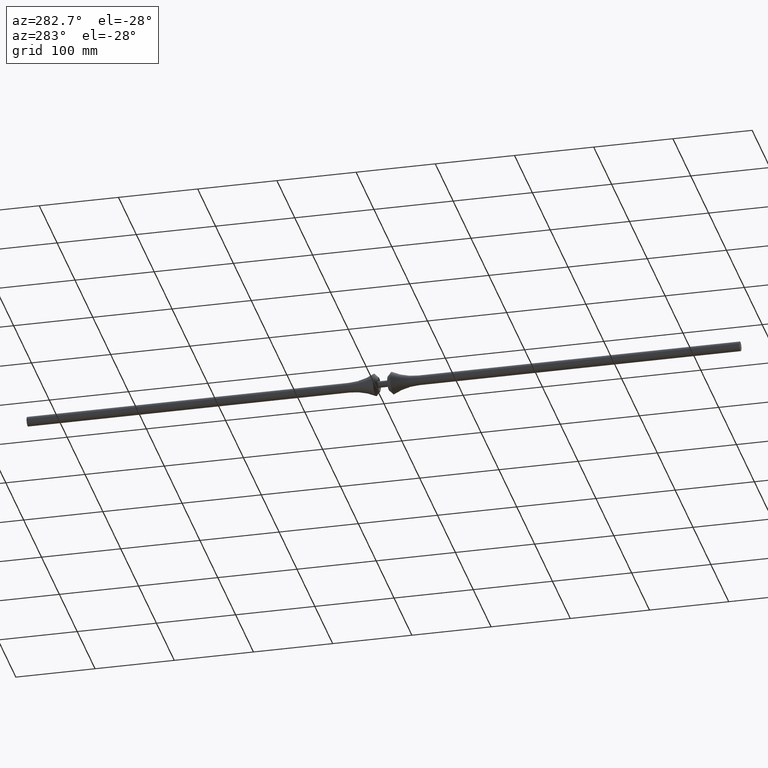
[diagram: clean part render]
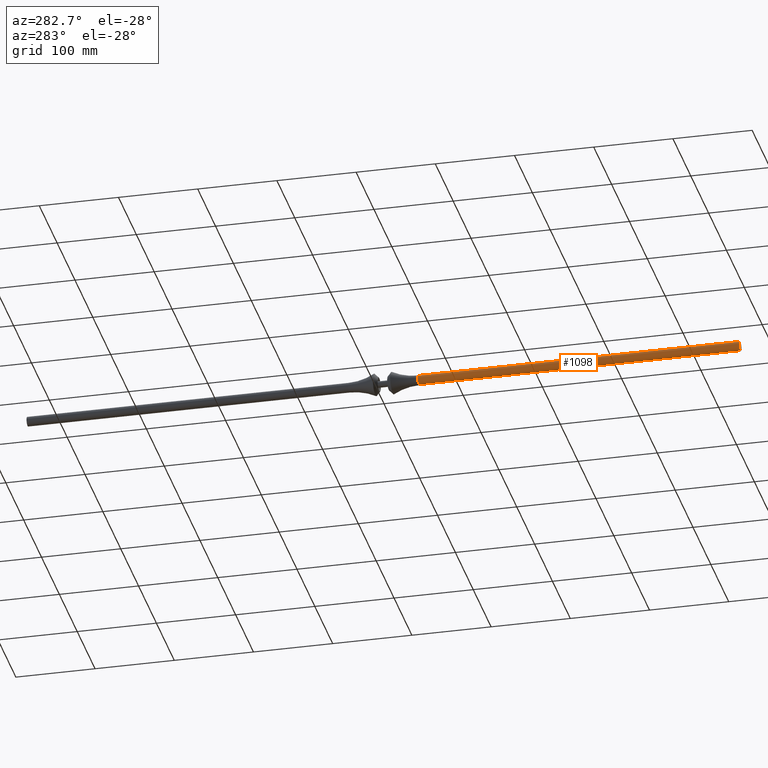
[diagram: same view with one face highlighted and labeled with its STEP entity id]
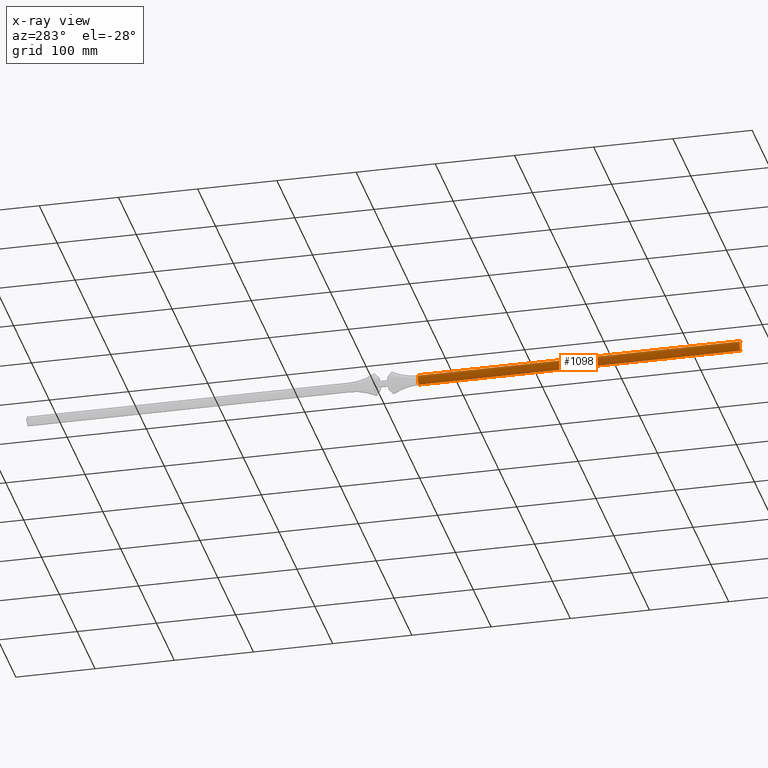
[diagram: x-ray of the same camera — body ghosted, the highlighted face saturated]
A machine part, auxiliary view. The second image highlights one B-rep face of the part: STEP entity #1098.
The next image is the same camera in x-ray: the body ghosted, the highlighted face saturated — about 0% of this face is hidden behind the body in this view.
In plain terms, the highlighted cylindrical surface (edge-blend (fillet) strip) has radius 6 mm, axis along (0, 1, 0).
Its self-contained STEP definition (entity closure, byte-faithful):
#32 = EDGE_LOOP ( 'NONE', ( #2570, #1085, #686, #151 ) ) ;
#102 = CIRCLE ( 'NONE', #1902, 6.000000000000000000 ) ;
#141 = CARTESIAN_POINT ( 'NONE',  ( 0.000000000000000000, 406.0000000000000000, -6.000000000000000000 ) ) ;
#151 = ORIENTED_EDGE ( 'NONE', *, *, #2547, .F. ) ;
#160 = DIRECTION ( 'NONE',  ( 0.000000000000000000, -1.000000000000000000, 0.000000000000000000 ) ) ;
#207 = CARTESIAN_POINT ( 'NONE',  ( 0.000000000000000000, 0.000000000000000000, -6.000000000000000000 ) ) ;
#255 = VERTEX_POINT ( 'NONE', #1901 ) ;
#287 = CARTESIAN_POINT ( 'NONE',  ( 0.000000000000000000, 0.000000000000000000, 0.000000000000000000 ) ) ;
#312 = VERTEX_POINT ( 'NONE', #207 ) ;
#349 = FACE_OUTER_BOUND ( 'NONE', #32, .T. ) ;
#404 = DIRECTION ( 'NONE',  ( 0.000000000000000000, -1.000000000000000000, 0.000000000000000000 ) ) ;
#603 = AXIS2_PLACEMENT_3D ( 'NONE', #1890, #404, #2574 ) ;
#686 = ORIENTED_EDGE ( 'NONE', *, *, #2473, .T. ) ;
#747 = LINE ( 'NONE', #2456, #940 ) ;
#846 = VECTOR ( 'NONE', #160, 1000.000000000000000 ) ;
#940 = VECTOR ( 'NONE', #1142, 1000.000000000000000 ) ;
#950 = DIRECTION ( 'NONE',  ( 0.000000000000000000, 0.000000000000000000, -1.000000000000000000 ) ) ;
#1085 = ORIENTED_EDGE ( 'NONE', *, *, #1995, .T. ) ;
#1098 = ADVANCED_FACE ( 'NONE', ( #349 ), #2000, .T. ) ;
#1142 = DIRECTION ( 'NONE',  ( 0.000000000000000000, -1.000000000000000000, 0.000000000000000000 ) ) ;
#1179 = LINE ( 'NONE', #1444, #846 ) ;
#1271 = AXIS2_PLACEMENT_3D ( 'NONE', #287, #2216, #1347 ) ;
#1347 = DIRECTION ( 'NONE',  ( 0.000000000000000000, 0.000000000000000000, -1.000000000000000000 ) ) ;
#1444 = CARTESIAN_POINT ( 'NONE',  ( 7.347880794884119736E-16, 0.000000000000000000, 6.000000000000000000 ) ) ;
#1664 = VERTEX_POINT ( 'NONE', #141 ) ;
#1799 = CARTESIAN_POINT ( 'NONE',  ( 0.000000000000000000, 0.000000000000000000, 0.000000000000000000 ) ) ;
#1890 = CARTESIAN_POINT ( 'NONE',  ( 0.000000000000000000, 406.0000000000000000, 0.000000000000000000 ) ) ;
#1901 = CARTESIAN_POINT ( 'NONE',  ( 7.347880794884119736E-16, 406.0000000000000000, 6.000000000000000000 ) ) ;
#1902 = AXIS2_PLACEMENT_3D ( 'NONE', #1799, #2678, #950 ) ;
#1905 = EDGE_CURVE ( 'NONE', #255, #2323, #1179, .T. ) ;
#1995 = EDGE_CURVE ( 'NONE', #255, #1664, #2516, .T. ) ;
#2000 = CYLINDRICAL_SURFACE ( 'NONE', #1271, 6.000000000000000000 ) ;
#2216 = DIRECTION ( 'NONE',  ( 0.000000000000000000, -1.000000000000000000, 0.000000000000000000 ) ) ;
#2323 = VERTEX_POINT ( 'NONE', #2697 ) ;
#2456 = CARTESIAN_POINT ( 'NONE',  ( 0.000000000000000000, 0.000000000000000000, -6.000000000000000000 ) ) ;
#2473 = EDGE_CURVE ( 'NONE', #1664, #312, #747, .T. ) ;
#2516 = CIRCLE ( 'NONE', #603, 6.000000000000000000 ) ;
#2547 = EDGE_CURVE ( 'NONE', #2323, #312, #102, .T. ) ;
#2570 = ORIENTED_EDGE ( 'NONE', *, *, #1905, .F. ) ;
#2574 = DIRECTION ( 'NONE',  ( 0.000000000000000000, 0.000000000000000000, -1.000000000000000000 ) ) ;
#2678 = DIRECTION ( 'NONE',  ( 0.000000000000000000, -1.000000000000000000, 0.000000000000000000 ) ) ;
#2697 = CARTESIAN_POINT ( 'NONE',  ( 7.347880794884119736E-16, 0.000000000000000000, 6.000000000000000000 ) ) ;